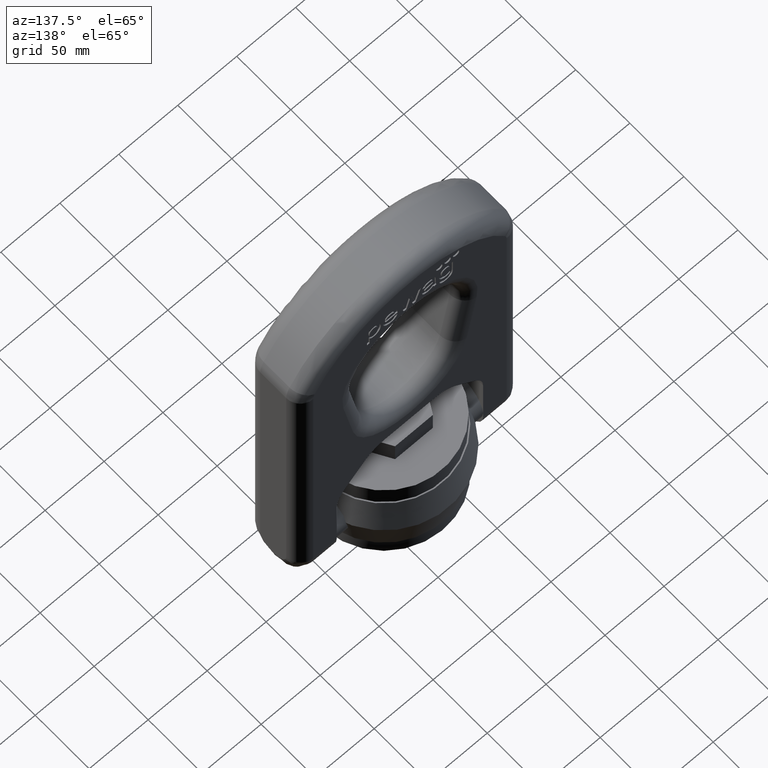
[diagram: clean part render]
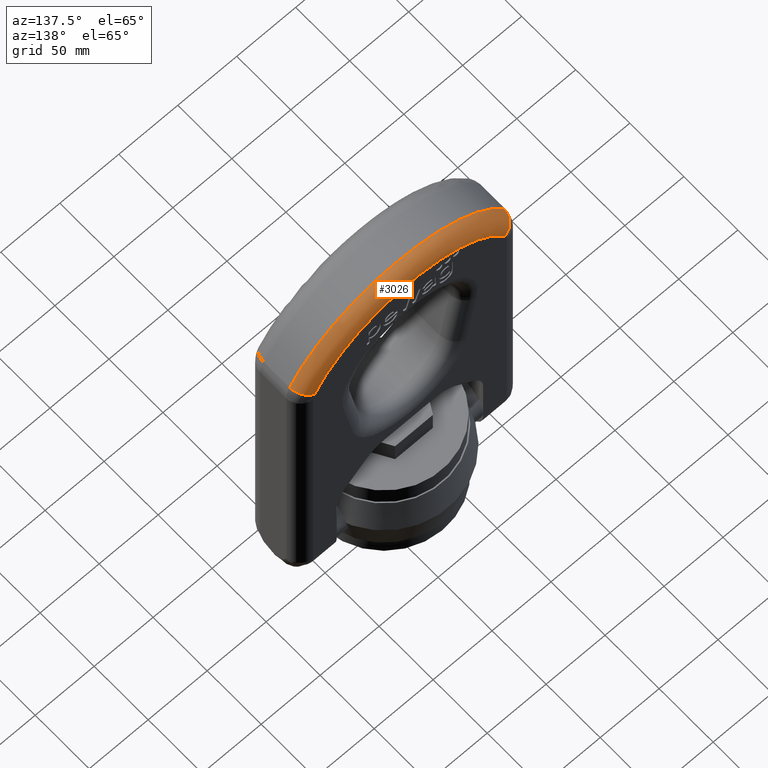
[diagram: same view with one face highlighted and labeled with its STEP entity id]
A machine part, auxiliary view. The second image highlights one B-rep face of the part: STEP entity #3026.
In plain terms, the highlighted toroidal blend (fillet) surface has major radius 91.6333 mm and minor (blend) radius 12 mm.
Its self-contained STEP definition (entity closure, byte-faithful):
#202=TOROIDAL_SURFACE('',#6041,91.6333333333333,12.);
#2651=FACE_OUTER_BOUND('',#3419,.T.);
#3026=ADVANCED_FACE('',(#2651),#202,.T.);
#3419=EDGE_LOOP('',(#4641,#4642,#4643,#4644));
#4641=ORIENTED_EDGE('',*,*,#5734,.T.);
#4642=ORIENTED_EDGE('',*,*,#5369,.F.);
#4643=ORIENTED_EDGE('',*,*,#5736,.F.);
#4644=ORIENTED_EDGE('',*,*,#5280,.F.);
#4831=VERTEX_POINT('',#7404);
#4841=VERTEX_POINT('',#7426);
#4928=VERTEX_POINT('',#7762);
#4929=VERTEX_POINT('',#7764);
#5280=EDGE_CURVE('',#4841,#4831,#5783,.T.);
#5369=EDGE_CURVE('',#4928,#4929,#5791,.T.);
#5734=EDGE_CURVE('',#4841,#4929,#5812,.T.);
#5736=EDGE_CURVE('',#4831,#4928,#5814,.T.);
#5783=CIRCLE('',#5890,91.6333333333333);
#5791=CIRCLE('',#5904,103.633333333333);
#5812=CIRCLE('',#6037,12.);
#5814=CIRCLE('',#6040,12.);
#5890=AXIS2_PLACEMENT_3D('',#7427,#6285,#6286);
#5904=AXIS2_PLACEMENT_3D('',#7763,#6360,#6361);
#6037=AXIS2_PLACEMENT_3D('',#9754,#6882,#6883);
#6040=AXIS2_PLACEMENT_3D('',#9773,#6888,#6889);
#6041=AXIS2_PLACEMENT_3D('',#9774,#6890,#6891);
#6285=DIRECTION('',(2.34291072916505E-15,1.,0.));
#6286=DIRECTION('',(-1.,2.34746137891369E-15,0.));
#6360=DIRECTION('',(-2.34291072916505E-15,-1.,0.));
#6361=DIRECTION('',(-1.,2.34346690225236E-15,0.));
#6882=DIRECTION('',(0.476768522394306,-1.10274873120557E-15,0.879028882377565));
#6883=DIRECTION('',(0.879028882377565,0.,-0.476768522394306));
#6888=DIRECTION('',(0.476768522394306,-1.10274873120557E-15,-0.879028882377564));
#6889=DIRECTION('',(-0.879028882377564,0.,-0.476768522394306));
#6890=DIRECTION('',(2.34291072916505E-15,1.,0.));
#6891=DIRECTION('',(-1.,2.34346690225236E-15,0.));
#7404=CARTESIAN_POINT('',(80.5483465885308,23.9999999999998,271.054555602065));
#7426=CARTESIAN_POINT('',(-80.5483465885307,24.0000000000002,271.054555602065));
#7427=CARTESIAN_POINT('',(2.81149287499806E-14,24.,227.366666666667));
#7762=CARTESIAN_POINT('',(91.0966931770616,11.9999999999998,276.775777870797));
#7763=CARTESIAN_POINT('',(0.,12.,227.366666666667));
#7764=CARTESIAN_POINT('',(-91.0966931770616,12.0000000000002,276.775777870797));
#9754=CARTESIAN_POINT('',(-80.5483465885308,12.0000000000002,271.054555602065));
#9773=CARTESIAN_POINT('',(80.5483465885308,11.9999999999998,271.054555602065));
#9774=CARTESIAN_POINT('',(0.,12.,227.366666666667));